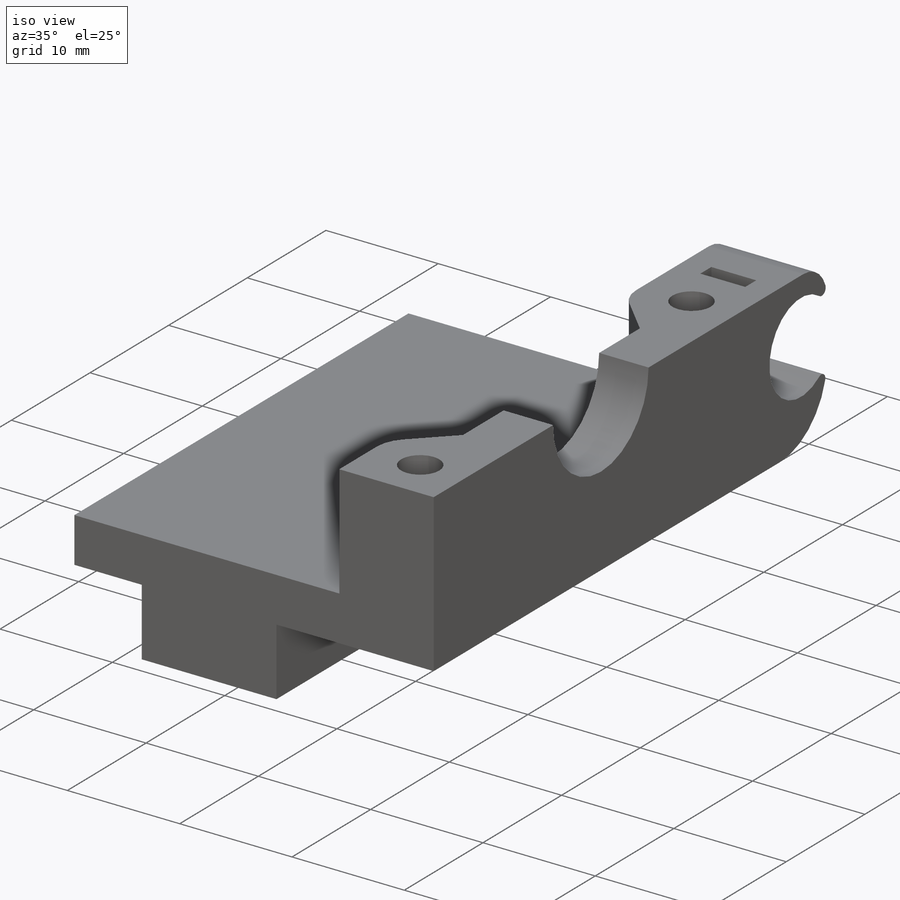
[diagram: iso view]
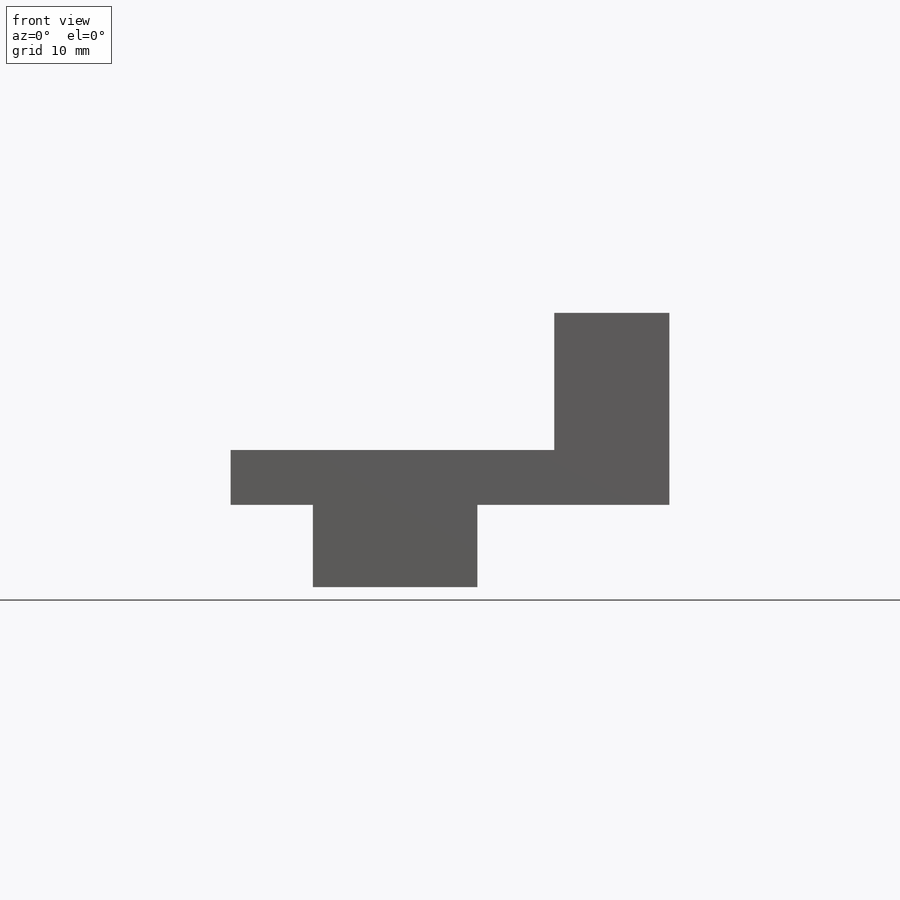
[diagram: front view]
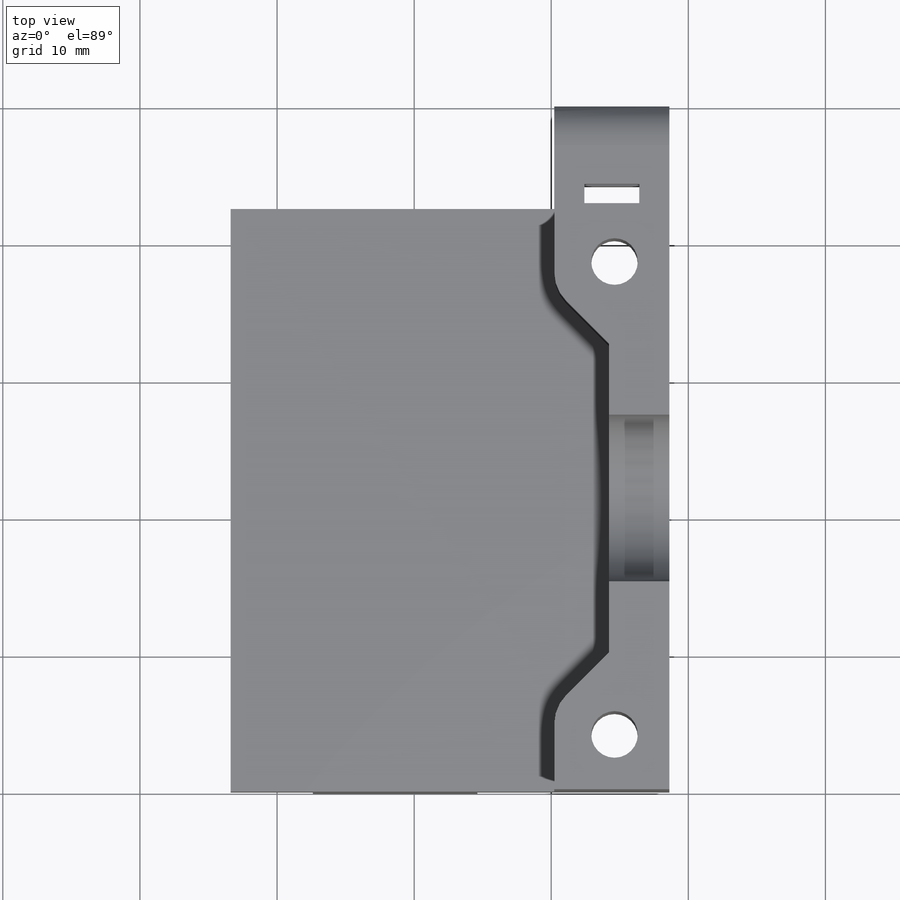
[diagram: top view]
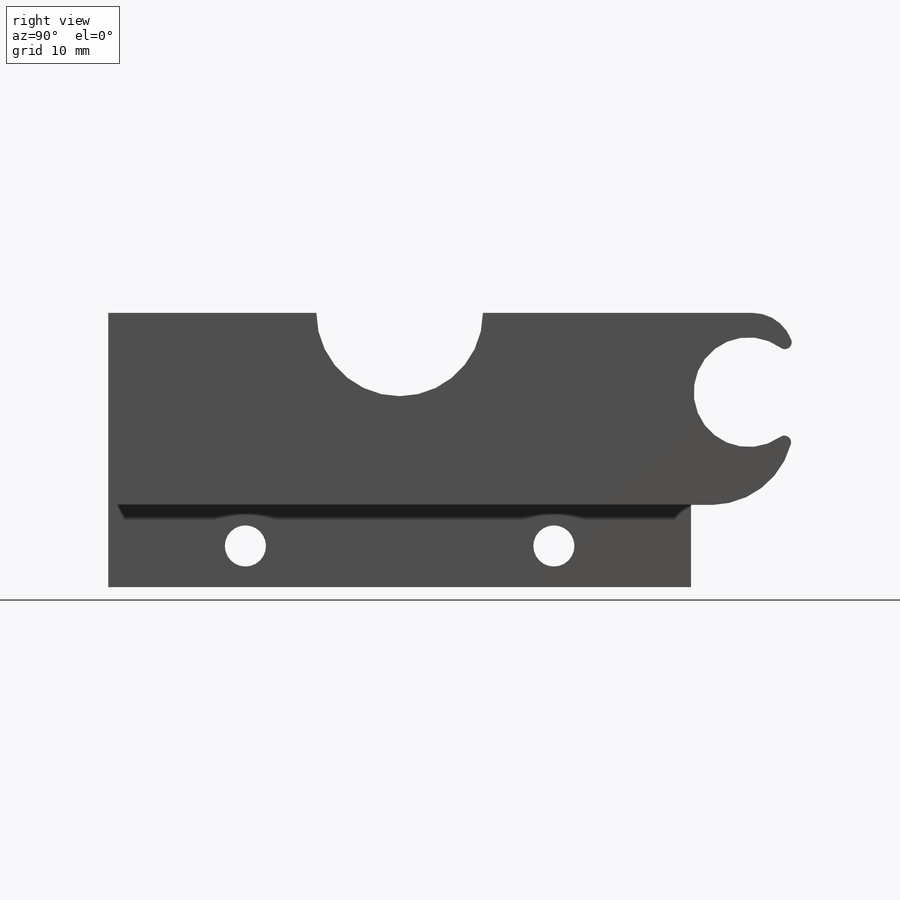
[diagram: right view]
SOLIDWORKS PART (.sldprt)
format: sldprt  version: not decoded by parser v0  size: 419,328 bytes
history: native  units: mm
features: sketch x12, cut_extrude x5, fillet x4, plane x3, extrude x3, hole x2, material x1, chamfer x1 (+9 scaffold rows collapsed)
feature tree (40):
  scaffold x9  (default folders/planes/origin — collapsed)
  material  "Matériau <non spécifié>"
  plane  "Plan de face"
  plane  "Plan de dessus"
  plane  "Plan de droite"
  sketch  "Esquisse1"  dims[D1=40.0mm D2=4.0mm D3=14.0mm D4=6.0mm D5=12.0mm D6=6.0mm D7=4.0mm]
  extrude  "Boss.-Extru.1"  Depth=42.5mm
  hole  "Dégagement M31"  Diameter=3mm Depth=26mm
  sketch  "Esquisse4"  dims[D1=10.0mm D2=10.0mm]
  sketch  "Esquisse5"  dims[hole-wizard template sketch: 60 standard entries collapsed; hole parameters kept: c18.Profondeur du perçage jusqu'au prochain=26.0mm]
  sketch  "Esquisse10"  dims[c1.D1=42.5mm c1.D2=~7.681528mm c2.D1=4.4mm c2.D2=~5.270304mm c2.D3=~5.004182mm c3.D2=~5.493865mm c3.D3=~5.004182mm c4.D2=~8.03827mm c4.D3=~3.193903mm c5.D2=4.0mm c5.D3=10.0mm c5.D4=4.0mm c5.D5=10.0mm]
  extrude  "Boss.-Extru.2"  Depth=10mm
  sketch  "Esquisse12"  dims[D1=12.15mm]
  cut_extrude  "Enlèv. mat.-Extru.3"  [1 undecoded]
  hole  "Dégagement M33"  Diameter=3.4mm Depth=14.000025mm
  sketch  "Esquisse7"  dims[c1.D1=~33.511672mm c1.D2=~32.666162mm c2.D1=4.0mm c2.D2=4.0mm c2.D3=4.0mm c2.D4=4.0mm]
  sketch  "Esquisse8"  dims[hole-wizard template sketch: 60 standard entries collapsed; hole parameters kept: c18.Profondeur du perçage jusqu'au prochain=~14.000025mm]
  sketch  "Esquisse9"  dims[D1=3.5mm D2=3.5mm]
  cut_extrude  "Enlèv. mat.-Extru.1"  Depth=1.5mm
  chamfer  "Chanfrein1"  Distance=4mm Angle=45deg
  sketch  "Esquisse13"  dims[c1.D1=4.0mm c1.D2=~9.88873mm c2.D1=6.0mm c2.D2=31.6mm]
  cut_extrude  "Enlèv. mat.-Extru.4"  [1 undecoded]
  sketch  "Esquisse14"
  extrude  "Boss.-Extru.3"  Depth=7.5mm
  sketch  "Esquisse15"  dims[D1=8.0mm D2=3.3mm]
  cut_extrude  "Enlèv. mat.-Extru.5"  [1 undecoded]
  fillet  "Congé2"  Radius=3mm
  fillet  "Congé3"  Radius=6mm
  fillet  "Congé4"  Radius=0.5mm
  sketch  "Esquisse16"  dims[D1=1.4mm D2=4.0mm D3=~5.158417mm]
  cut_extrude  "Enlèv. mat.-Extru.6"  [1 undecoded]
  fillet  "Congé5"  Radius=3mm
decode coverage: 22 of 27 modeling features carry decoded parameters
note: ~ marks probable driven/reference dimensions
note: 4 parameter values undecoded
summary: no parameter record found for 4 features
note: suppression state not decoded; provenance and decode notes live in map.json
